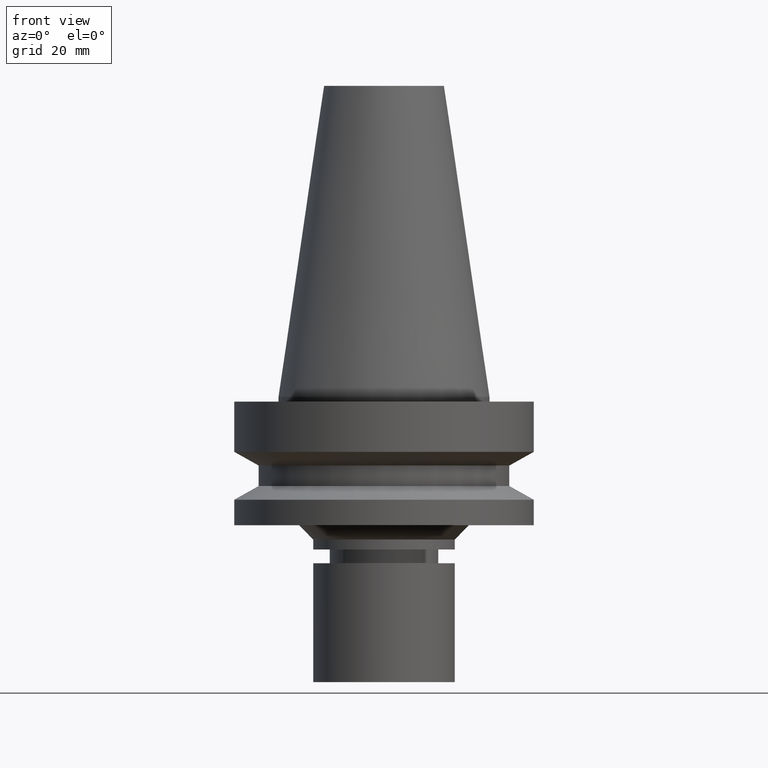
[diagram: clean part render]
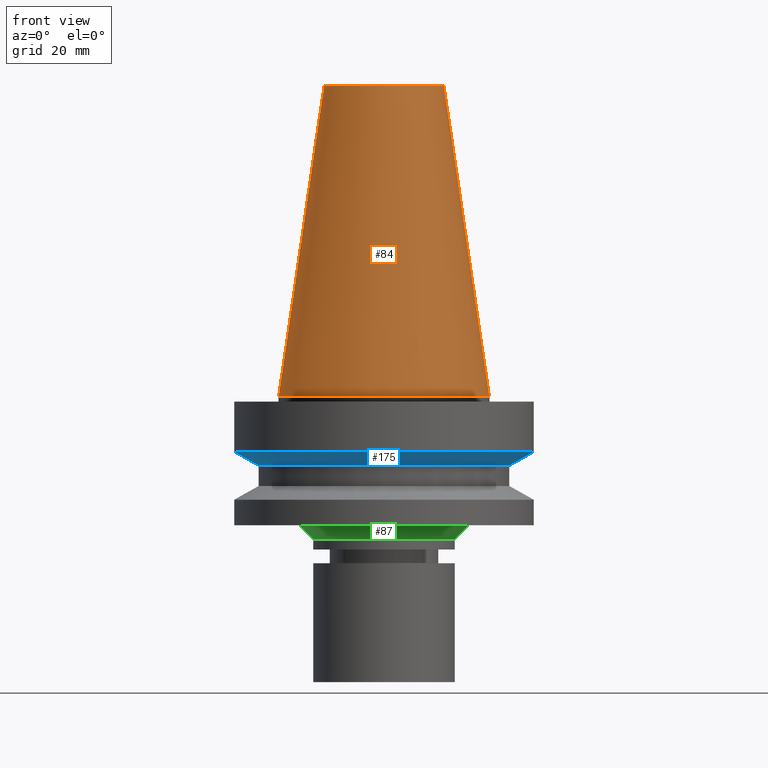
[diagram: same view with three faces highlighted in distinct colors, each labeled with its STEP entity id]
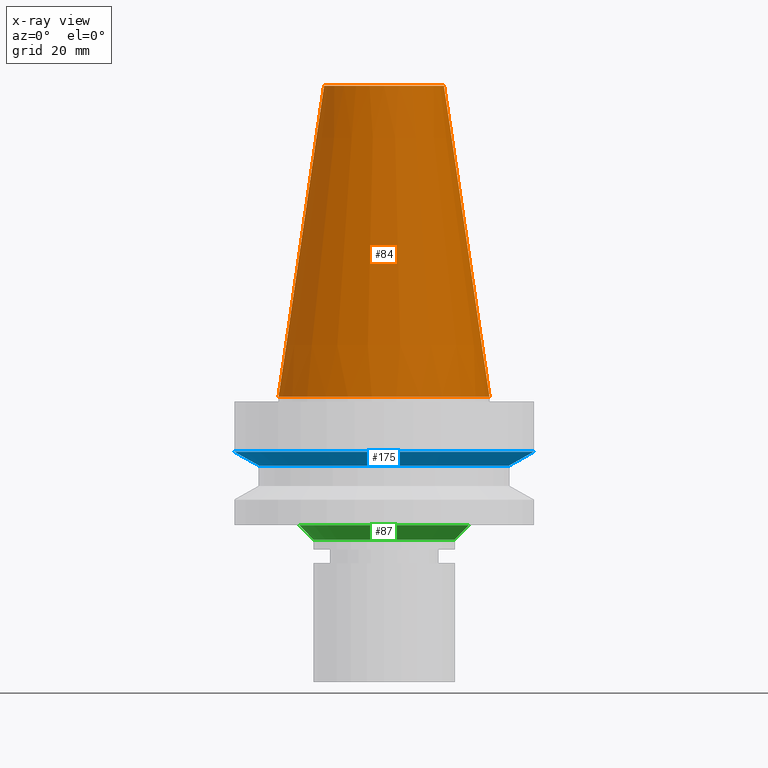
[diagram: x-ray of the same camera — body ghosted, the three highlighted faces saturated]
A machine part, front view with three faces highlighted in distinct colors.
The next image is the same camera in x-ray (body ghosted, the three faces saturated) — at least one of them is partly hidden behind the body in this view.
Their STEP definitions:

[orange] entity #84 — the highlighted conical surface has half-angle 8.297 deg.
#84=ADVANCED_FACE('Unnamed[1]',(#214,#215),#216,.T.);
#114=EDGE_CURVE('Unnamed[1]',#260,#260,#261,.T.);
#137=EDGE_CURVE('Unnamed[1]',#296,#296,#297,.T.);
#214=FACE_BOUND('',#393,.T.);
#215=FACE_BOUND('',#394,.T.);
#216=CONICAL_SURFACE('',#395,17.4562500000001,0.144812498238936);
#260=VERTEX_POINT('',#450);
#261=CIRCLE('',#451,12.6875000000001);
#296=VERTEX_POINT('',#495);
#297=CIRCLE('',#496,22.225);
#393=EDGE_LOOP('',(#595));
#394=EDGE_LOOP('',(#596));
#395=AXIS2_PLACEMENT_3D('',#597,#598,#599);
#450=CARTESIAN_POINT('',(-4.00459503321185E-015,12.6875000000002,65.4000000000001));
#451=AXIS2_PLACEMENT_3D('',#645,#646,#647);
#495=CARTESIAN_POINT('',(1.71319921032766E-029,22.2250000000001,-2.8153873565375E-013));
#496=AXIS2_PLACEMENT_3D('',#686,#687,#688);
#595=ORIENTED_EDGE('',*,*,#137,.F.);
#596=ORIENTED_EDGE('',*,*,#114,.T.);
#597=CARTESIAN_POINT('',(-2.00229751660592E-015,5.9080489974516E-014,32.6999999999999));
#598=DIRECTION('',(6.12323399573677E-017,-5.36731610657168E-016,-1.0));
#599=DIRECTION('',(2.8038179718853E-032,1.0,-5.36731610657168E-016));
#645=CARTESIAN_POINT('',(-4.00459503321185E-015,7.66316136430044E-014,65.4000000000001));
#646=DIRECTION('',(6.12323399573677E-017,-5.36731610657179E-016,-1.0));
#647=DIRECTION('',(2.80381797188536E-032,1.0,-5.36731610657179E-016));
#686=CARTESIAN_POINT('',(1.65331138531142E-029,4.15293663060276E-014,-2.70006239588838E-013));
#687=DIRECTION('',(6.12323399573677E-017,-5.36731610657161E-016,-1.0));
#688=DIRECTION('',(2.80381797188567E-032,1.0,-5.36731610657162E-016));

[blue] entity #175 — the highlighted conical surface has half-angle 60 deg.
#142=EDGE_CURVE('Unnamed[1]',#304,#304,#305,.T.);
#157=EDGE_CURVE('Unnamed[1]',#327,#327,#328,.T.);
#175=ADVANCED_FACE('Unnamed[1]',(#353,#354),#355,.T.);
#304=VERTEX_POINT('',#505);
#305=CIRCLE('',#506,31.5000000000003);
#327=VERTEX_POINT('',#534);
#328=CIRCLE('',#535,26.4999999999994);
#353=FACE_BOUND('',#566,.T.);
#354=FACE_BOUND('',#567,.T.);
#355=CONICAL_SURFACE('',#568,28.9999999999999,1.04719755119657);
#505=CARTESIAN_POINT('',(7.08182973902924E-016,31.5000000000004,-11.5655056526664));
#506=AXIS2_PLACEMENT_3D('',#695,#696,#697);
#534=CARTESIAN_POINT('',(8.8494551369045E-016,26.4999999999995,-14.4522569986152));
#535=AXIS2_PLACEMENT_3D('',#721,#722,#723);
#566=EDGE_LOOP('',(#747));
#567=EDGE_LOOP('',(#748));
#568=AXIS2_PLACEMENT_3D('',#749,#750,#751);
#695=CARTESIAN_POINT('',(7.08182973902923E-016,3.5321793829008E-014,-11.5655056526663));
#696=DIRECTION('',(6.12323399573676E-017,-5.36731610657132E-016,-1.0));
#697=DIRECTION('',(2.80381797188561E-032,1.0,-5.36731610657132E-016));
#721=CARTESIAN_POINT('',(8.8494551369045E-016,3.37723831295302E-014,-14.4522569986152));
#722=DIRECTION('',(6.12323399573677E-017,-5.36731610657181E-016,-1.0));
#723=DIRECTION('',(2.80381797188572E-032,1.0,-5.36731610657181E-016));
#747=ORIENTED_EDGE('',*,*,#157,.F.);
#748=ORIENTED_EDGE('',*,*,#142,.T.);
#749=CARTESIAN_POINT('',(7.96564243796686E-016,3.45470884792691E-014,-13.0088813256408));
#750=DIRECTION('',(-6.12323399573677E-017,5.36731610657154E-016,1.0));
#751=DIRECTION('',(2.80381797188566E-032,1.0,-5.36731610657154E-016));

[green] entity #87 — the highlighted conical surface has half-angle 45 deg.
#87=ADVANCED_FACE('Unnamed[1]',(#219,#220),#221,.T.);
#92=EDGE_CURVE('Unnamed[1]',#228,#228,#229,.T.);
#162=EDGE_CURVE('Unnamed[1]',#333,#333,#334,.T.);
#219=FACE_BOUND('',#399,.T.);
#220=FACE_BOUND('',#400,.T.);
#221=CONICAL_SURFACE('',#401,16.5,0.785398163397448);
#228=VERTEX_POINT('',#410);
#229=CIRCLE('',#411,15.0);
#333=VERTEX_POINT('',#541);
#334=CIRCLE('',#542,18.0000000000001);
#399=EDGE_LOOP('',(#601));
#400=EDGE_LOOP('',(#602));
#401=AXIS2_PLACEMENT_3D('',#603,#604,#605);
#410=CARTESIAN_POINT('',(1.83697019872103E-015,15.0,-29.9999999999999));
#411=AXIS2_PLACEMENT_3D('',#612,#613,#614);
#541=CARTESIAN_POINT('',(1.65327317884891E-015,18.0000000000001,-26.9999999999998));
#542=AXIS2_PLACEMENT_3D('',#725,#726,#727);
#601=ORIENTED_EDGE('',*,*,#92,.F.);
#602=ORIENTED_EDGE('',*,*,#162,.T.);
#603=CARTESIAN_POINT('',(1.74512168878497E-015,2.62325154022995E-014,-28.4999999999999));
#604=DIRECTION('',(-6.12323399573676E-017,5.3673161065709E-016,1.0));
#605=DIRECTION('',(2.80381797188519E-032,1.0,-5.3673161065709E-016));
#612=CARTESIAN_POINT('',(1.83697019872102E-015,2.54274179863138E-014,-29.9999999999999));
#613=DIRECTION('',(6.12323399573677E-017,-5.36731610657083E-016,-1.0));
#614=DIRECTION('',(2.80381797188493E-032,1.0,-5.36731610657083E-016));
#725=CARTESIAN_POINT('',(1.65327317884891E-015,2.70376128182853E-014,-26.9999999999998));
#726=DIRECTION('',(6.12323399573677E-017,-5.36731610657097E-016,-1.0));
#727=DIRECTION('',(2.80381797188491E-032,1.0,-5.36731610657097E-016));